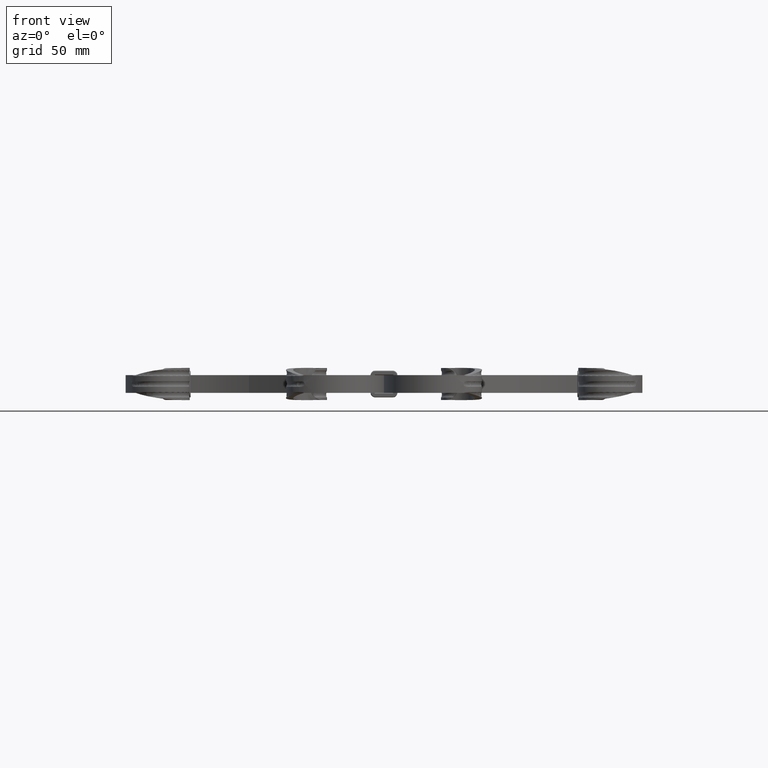
[diagram: clean part render]
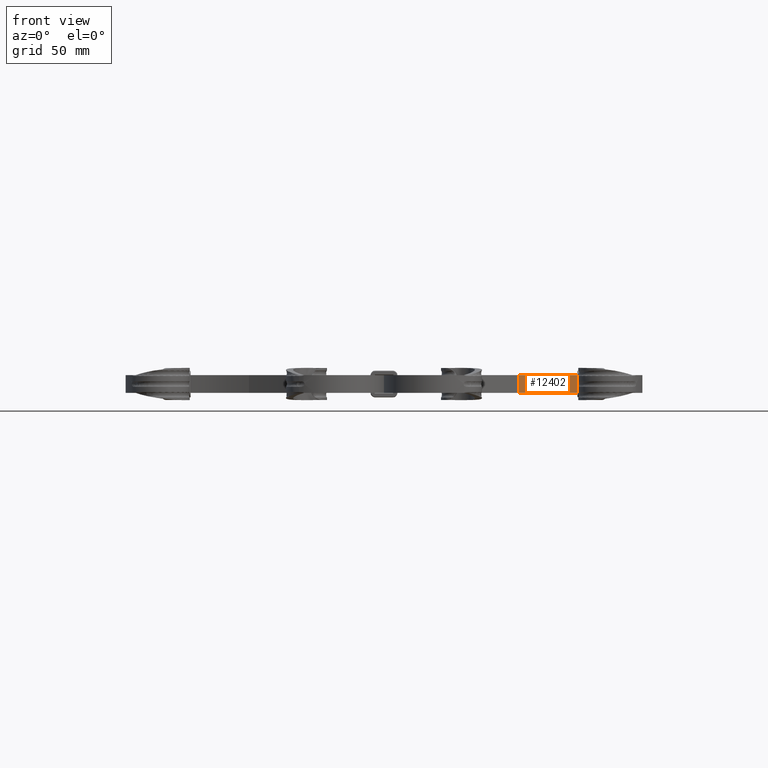
[diagram: same view with one face highlighted and labeled with its STEP entity id]
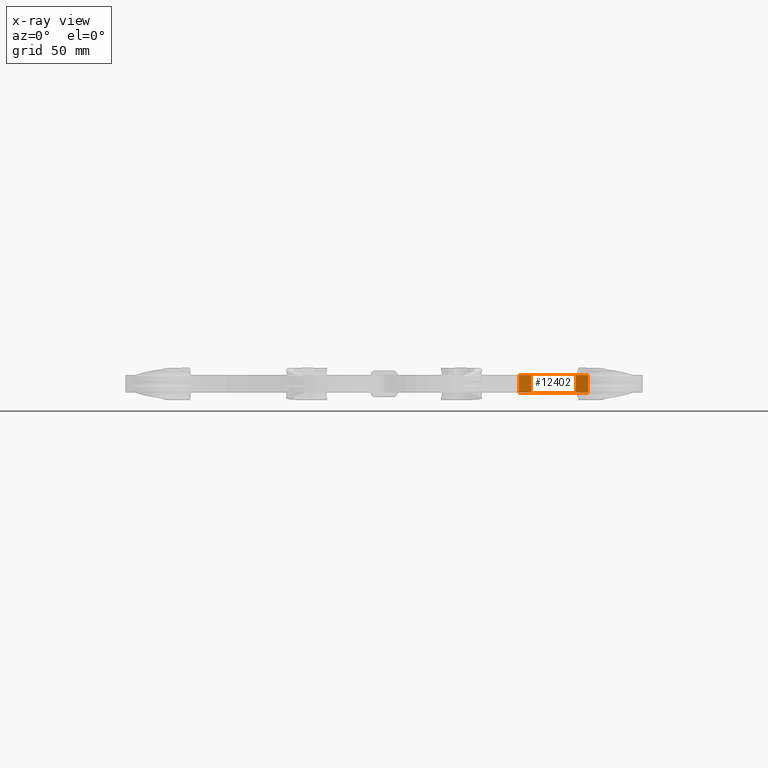
[diagram: x-ray of the same camera — body ghosted, the highlighted face saturated]
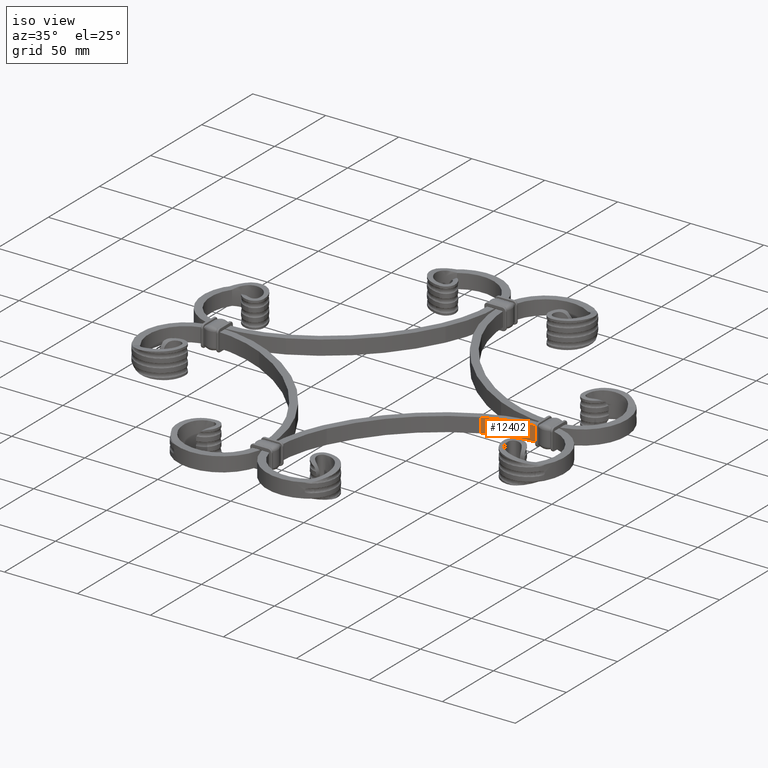
[diagram: same view with one face highlighted and labeled with its STEP entity id]
A machine part, front view. The second image highlights one B-rep face of the part: STEP entity #12402.
The next image is the same camera in x-ray: the body ghosted, the highlighted face saturated — about 2% of this face is hidden behind the body in this view.
A second angle (iso view) of the same face is appended — the face is thin or edge-on in the first view.
In plain terms, the highlighted cylindrical surface (partial cylindrical patch) has radius 89 mm, axis along (0, 0, 1).
Its self-contained STEP definition (entity closure, byte-faithful):
#1353 = VERTEX_POINT ( 'NONE', #29025 ) ;
#3239 = DIRECTION ( 'NONE',  ( -0.000000000000000000, 0.000000000000000000, 1.000000000000000000 ) ) ;
#3526 = AXIS2_PLACEMENT_3D ( 'NONE', #33743, #37372, #30405 ) ;
#4535 = CARTESIAN_POINT ( 'NONE',  ( 75.77249486318596894, -13.88247173995874562, -5.000000000000000000 ) ) ;
#5106 = EDGE_CURVE ( 'NONE', #18871, #17628, #45512, .T. ) ;
#5284 = ORIENTED_EDGE ( 'NONE', *, *, #40720, .T. ) ;
#9260 = CARTESIAN_POINT ( 'NONE',  ( 114.5304832720492243, -4.999999999999102052, -5.000000000000000000 ) ) ;
#9702 = DIRECTION ( 'NONE',  ( -0.000000000000000000, 0.000000000000000000, -1.000000000000000000 ) ) ;
#10408 = AXIS2_PLACEMENT_3D ( 'NONE', #43050, #3239, #28371 ) ;
#10594 = CYLINDRICAL_SURFACE ( 'NONE', #3526, 88.99999999999997158 ) ;
#12402 = ADVANCED_FACE ( 'NONE', ( #19599 ), #10594, .F. ) ;
#15134 = EDGE_CURVE ( 'NONE', #22967, #18871, #36953, .T. ) ;
#15467 = VECTOR ( 'NONE', #32734, 1000.000000000000000 ) ;
#17628 = VERTEX_POINT ( 'NONE', #4535 ) ;
#17738 = VECTOR ( 'NONE', #9702, 1000.000000000000000 ) ;
#18060 = CARTESIAN_POINT ( 'NONE',  ( 75.77249486318596894, -13.88247173995874562, -5.000000000000000000 ) ) ;
#18871 = VERTEX_POINT ( 'NONE', #9260 ) ;
#19599 = FACE_OUTER_BOUND ( 'NONE', #25140, .T. ) ;
#19868 = ORIENTED_EDGE ( 'NONE', *, *, #15134, .F. ) ;
#20722 = ORIENTED_EDGE ( 'NONE', *, *, #5106, .F. ) ;
#22967 = VERTEX_POINT ( 'NONE', #30825 ) ;
#23486 = AXIS2_PLACEMENT_3D ( 'NONE', #26934, #37689, #44638 ) ;
#24549 = ORIENTED_EDGE ( 'NONE', *, *, #44161, .T. ) ;
#25140 = EDGE_LOOP ( 'NONE', ( #20722, #19868, #24549, #5284 ) ) ;
#26934 = CARTESIAN_POINT ( 'NONE',  ( 114.5304832720498922, -93.99999999999907629, 5.000000000000000000 ) ) ;
#27454 = CARTESIAN_POINT ( 'NONE',  ( 114.5304832720492101, -4.999999999999095834, -5.000000000000000000 ) ) ;
#28371 = DIRECTION ( 'NONE',  ( -7.640579804302344072E-15, 1.000000000000000000, 0.000000000000000000 ) ) ;
#29025 = CARTESIAN_POINT ( 'NONE',  ( 75.77249486318596894, -13.88247173995874562, 5.000000000000000000 ) ) ;
#30405 = DIRECTION ( 'NONE',  ( -7.640579804302344072E-15, 1.000000000000000000, 0.000000000000000000 ) ) ;
#30825 = CARTESIAN_POINT ( 'NONE',  ( 114.5304832720492243, -4.999999999999102052, 5.000000000000000000 ) ) ;
#32734 = DIRECTION ( 'NONE',  ( -0.000000000000000000, 0.000000000000000000, -1.000000000000000000 ) ) ;
#33743 = CARTESIAN_POINT ( 'NONE',  ( 114.5304832720498922, -93.99999999999907629, 0.000000000000000000 ) ) ;
#35585 = CIRCLE ( 'NONE', #23486, 88.99999999999997158 ) ;
#36953 = LINE ( 'NONE', #27454, #17738 ) ;
#37372 = DIRECTION ( 'NONE',  ( 0.000000000000000000, 0.000000000000000000, 1.000000000000000000 ) ) ;
#37689 = DIRECTION ( 'NONE',  ( -0.000000000000000000, 0.000000000000000000, 1.000000000000000000 ) ) ;
#40720 = EDGE_CURVE ( 'NONE', #1353, #17628, #42482, .T. ) ;
#42482 = LINE ( 'NONE', #18060, #15467 ) ;
#43050 = CARTESIAN_POINT ( 'NONE',  ( 114.5304832720498922, -93.99999999999907629, -5.000000000000000000 ) ) ;
#44161 = EDGE_CURVE ( 'NONE', #22967, #1353, #35585, .T. ) ;
#44638 = DIRECTION ( 'NONE',  ( -7.640579804302344072E-15, 1.000000000000000000, 0.000000000000000000 ) ) ;
#45512 = CIRCLE ( 'NONE', #10408, 88.99999999999997158 ) ;